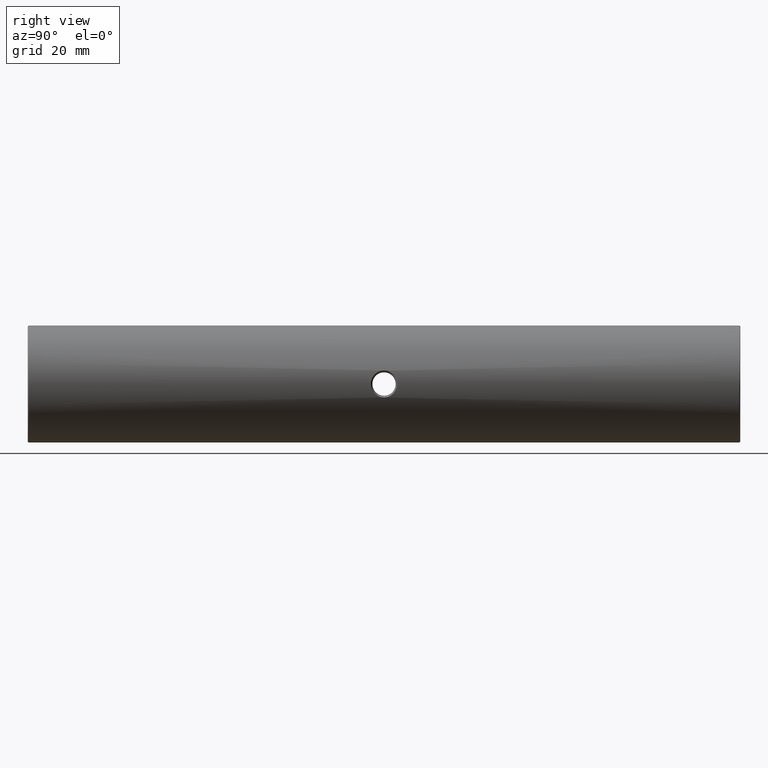
[diagram: clean part render]
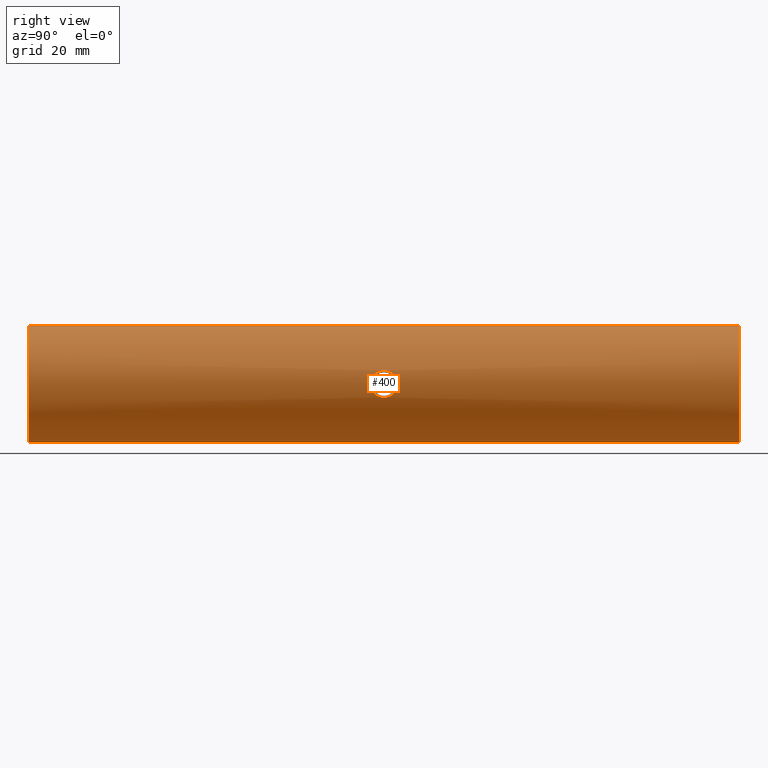
[diagram: same view with one face highlighted and labeled with its STEP entity id]
A machine part, right view. The second image highlights one B-rep face of the part: STEP entity #400.
In plain terms, the highlighted cylindrical surface (partial cylindrical patch) has radius 12.5 mm, axis along (-0, -1, -0).
Its self-contained STEP definition (entity closure, byte-faithful):
#42 = EDGE_CURVE ( 'NONE', #794, #189, #2627, .T. ) ;
#85 = CARTESIAN_POINT ( 'NONE',  ( -22.50520183104453409, -74.55174781523061256, 62.50000000000000000 ) ) ;
#103 = CARTESIAN_POINT ( 'NONE',  ( -10.34847189391650168, 1.398252184769386064, 47.09071877678779572 ) ) ;
#139 = CARTESIAN_POINT ( 'NONE',  ( -10.32931247817811382, 2.139314989562740355, 52.83196653070413618 ) ) ;
#189 = VERTEX_POINT ( 'NONE', #2931 ) ;
#211 = ORIENTED_EDGE ( 'NONE', *, *, #767, .T. ) ;
#225 = CARTESIAN_POINT ( 'NONE',  ( -10.02675186171662070, -1.322443306135983931, 50.75721055769170675 ) ) ;
#241 = CARTESIAN_POINT ( 'NONE',  ( -10.22044804822626496, -0.3177678142618768908, 47.68777784861504188 ) ) ;
#252 = DIRECTION ( 'NONE',  ( -0.0000000000000000000, -1.000000000000000000, -0.0000000000000000000 ) ) ;
#298 = EDGE_CURVE ( 'NONE', #1229, #3108, #2166, .T. ) ;
#334 = CARTESIAN_POINT ( 'NONE',  ( -10.34401387725285559, 1.031674240312187463, 52.89084654493360205 ) ) ;
#344 = CARTESIAN_POINT ( 'NONE',  ( -10.00964959997097914, 4.191281611593822731, 49.61735547849364281 ) ) ;
#400 = ADVANCED_FACE ( 'NONE', ( #3205, #2161 ), #846, .T. ) ;
#443 = AXIS2_PLACEMENT_3D ( 'NONE', #1053, #252, #1325 ) ;
#468 = CARTESIAN_POINT ( 'NONE',  ( -10.34845463298329626, 1.026200419320157931, 47.09079090336731355 ) ) ;
#499 = CARTESIAN_POINT ( 'NONE',  ( -10.22067027173311615, -0.3289239817676662958, 52.32705980222905850 ) ) ;
#607 = CARTESIAN_POINT ( 'NONE',  ( -10.03956905279386191, 4.064168843762233863, 49.05718252072970387 ) ) ;
#694 = DIRECTION ( 'NONE',  ( 0.0000000000000000000, 1.000000000000000000, 0.0000000000000000000 ) ) ;
#712 = VERTEX_POINT ( 'NONE', #1489 ) ;
#746 = CARTESIAN_POINT ( 'NONE',  ( -10.01064372293302185, -1.390416779116999013, 50.38099164021094367 ) ) ;
#762 = CARTESIAN_POINT ( 'NONE',  ( -10.08961095990384038, -1.040983855268388325, 48.54098388018954324 ) ) ;
#767 = EDGE_CURVE ( 'NONE', #3108, #1229, #1370, .T. ) ;
#777 = EDGE_LOOP ( 'NONE', ( #1779, #211 ) ) ;
#794 = VERTEX_POINT ( 'NONE', #85 ) ;
#827 = ORIENTED_EDGE ( 'NONE', *, *, #2805, .F. ) ;
#846 = CYLINDRICAL_SURFACE ( 'NONE', #1947, 12.49999999999999645 ) ;
#941 = CARTESIAN_POINT ( 'NONE',  ( -10.22016270266418836, 3.116156845041721191, 52.31070717733682329 ) ) ;
#1008 = CARTESIAN_POINT ( 'NONE',  ( -10.13104527352239259, -0.8357329463647609202, 48.22352196541852010 ) ) ;
#1024 = CARTESIAN_POINT ( 'NONE',  ( -10.03928546546168654, -1.268904155982409021, 49.06091485635030125 ) ) ;
#1028 = EDGE_CURVE ( 'NONE', #712, #794, #1561, .T. ) ;
#1042 = CARTESIAN_POINT ( 'NONE',  ( -10.00959453156566070, -1.395018423955151299, 49.61878162586662455 ) ) ;
#1051 = CARTESIAN_POINT ( 'NONE',  ( -22.50520183104453409, 77.59825218476937891, 62.50000000000000000 ) ) ;
#1053 = CARTESIAN_POINT ( 'NONE',  ( -22.50520183104453409, 77.34825218476937891, 50.00000000000000000 ) ) ;
#1056 = ORIENTED_EDGE ( 'NONE', *, *, #42, .T. ) ;
#1104 = CARTESIAN_POINT ( 'NONE',  ( -10.26240494945658810, 2.806784448265154275, 47.47501714754376678 ) ) ;
#1135 = CARTESIAN_POINT ( 'NONE',  ( -10.02657681141778134, 4.119691500564691466, 50.75422238455531243 ) ) ;
#1166 = AXIS2_PLACEMENT_3D ( 'NONE', #1540, #694, #2832 ) ;
#1210 = CARTESIAN_POINT ( 'NONE',  ( -10.28116133936228849, 2.647623010313875813, 52.61312323643212352 ) ) ;
#1229 = VERTEX_POINT ( 'NONE', #2101 ) ;
#1295 = VERTEX_POINT ( 'NONE', #2706 ) ;
#1299 = CARTESIAN_POINT ( 'NONE',  ( -10.15309026959585914, -0.7201977725135587649, 48.07808007598470823 ) ) ;
#1325 = DIRECTION ( 'NONE',  ( 0.0000000000000000000, 0.0000000000000000000, 1.000000000000000000 ) ) ;
#1370 = B_SPLINE_CURVE_WITH_KNOTS ( 'NONE', 3,
 ( #2535, #2275, #139, #1210, #3336, #941, #2008, #1748, #2816, #2989, #1954, #1628, #1135, #1919, #1885, #3234, #2435, #1935, #344, #3006, #607, #3022, #1405, #2957, #2153, #1104, #3282, #2497, #1660, #103 ),
 .UNSPECIFIED., .F., .F.,
 ( 4, 2, 2, 2, 2, 2, 2, 2, 2, 2, 2, 2, 2, 2, 4 ),
 ( 0.5000000000000000000, 0.5625000000000002220, 0.5937500000000002220, 0.6250000000000001110, 0.6562500000000000000, 0.6874999999999998890, 0.7187499999999997780, 0.7343749999999996669, 0.7499999999999996669, 0.7812499999999994449, 0.8124999999999993339, 0.8749999999999990008, 0.9062499999999992228, 0.9374999999999995559, 1.000000000000000000 ),
 .UNSPECIFIED. ) ;
#1405 = CARTESIAN_POINT ( 'NONE',  ( -10.13120772190444718, 3.643678481295848037, 48.20895563089933233 ) ) ;
#1452 = VECTOR ( 'NONE', #2664, 1000.000000000000000 ) ;
#1467 = ORIENTED_EDGE ( 'NONE', *, *, #1028, .T. ) ;
#1489 = CARTESIAN_POINT ( 'NONE',  ( -22.50520183104453409, 77.34825218476937891, 62.50000000000000000 ) ) ;
#1537 = CARTESIAN_POINT ( 'NONE',  ( -10.32954370538269551, 0.6599845765319402036, 47.16701032399795679 ) ) ;
#1540 = CARTESIAN_POINT ( 'NONE',  ( -22.50520183104453409, -74.55174781523061256, 50.00000000000000000 ) ) ;
#1554 = CARTESIAN_POINT ( 'NONE',  ( -10.00627837453443369, -1.408621410732946222, 50.18986673007000121 ) ) ;
#1561 = LINE ( 'NONE', #1051, #1452 ) ;
#1570 = CARTESIAN_POINT ( 'NONE',  ( -10.26514075146268823, -0.02094479338462088697, 52.54036784948638683 ) ) ;
#1592 = LINE ( 'NONE', #2628, #3123 ) ;
#1628 = CARTESIAN_POINT ( 'NONE',  ( -10.03912386684485902, 4.066135811496584651, 50.93725250157473994 ) ) ;
#1660 = CARTESIAN_POINT ( 'NONE',  ( -10.34848894705067046, 1.765824933951805065, 47.09064751851788344 ) ) ;
#1748 = CARTESIAN_POINT ( 'NONE',  ( -10.15294739807879765, 3.517539804955823968, 51.92107485672843126 ) ) ;
#1779 = ORIENTED_EDGE ( 'NONE', *, *, #298, .T. ) ;
#1798 = CARTESIAN_POINT ( 'NONE',  ( -10.34847189391650168, 1.398252184769386064, 47.09071877678779572 ) ) ;
#1856 = CARTESIAN_POINT ( 'NONE',  ( -10.34847154019207949, 1.401086072872692601, 52.90927974513803633 ) ) ;
#1885 = CARTESIAN_POINT ( 'NONE',  ( -10.01064152821728648, 4.186927187749979851, 50.38093568510178244 ) ) ;
#1892 = CIRCLE ( 'NONE', #443, 12.49999999999999645 ) ;
#1893 = DIRECTION ( 'NONE',  ( -0.0000000000000000000, -1.000000000000000000, -0.0000000000000000000 ) ) ;
#1919 = CARTESIAN_POINT ( 'NONE',  ( -10.01384831664376662, 4.173523746012523183, 50.47415274408400876 ) ) ;
#1935 = CARTESIAN_POINT ( 'NONE',  ( -10.00523732347763506, 4.209438793494732600, 49.80666152472052488 ) ) ;
#1947 = AXIS2_PLACEMENT_3D ( 'NONE', #2690, #1893, #3272 ) ;
#1954 = CARTESIAN_POINT ( 'NONE',  ( -10.07078360413767726, 3.924386101507585600, 51.29104044072189339 ) ) ;
#2008 = CARTESIAN_POINT ( 'NONE',  ( -10.19795443141096669, 3.257006472572751221, 52.19097686571279127 ) ) ;
#2076 = CARTESIAN_POINT ( 'NONE',  ( -10.02677036316765147, -1.322359924720013513, 49.24218911787531283 ) ) ;
#2094 = CARTESIAN_POINT ( 'NONE',  ( -10.08992494500197346, -1.039449521787542130, 51.46152594163834237 ) ) ;
#2101 = CARTESIAN_POINT ( 'NONE',  ( -10.34847189391650168, 1.398252184769386064, 47.09071877678779572 ) ) ;
#2108 = CARTESIAN_POINT ( 'NONE',  ( -10.26201457399352357, -0.01335821455697432276, 47.47692398635975053 ) ) ;
#2153 = CARTESIAN_POINT ( 'NONE',  ( -10.22069015972168238, 3.112715133747169460, 47.68647738585723062 ) ) ;
#2161 = FACE_OUTER_BOUND ( 'NONE', #2329, .T. ) ;
#2166 = B_SPLINE_CURVE_WITH_KNOTS ( 'NONE', 3,
 ( #1798, #468, #1537, #2603, #2108, #241, #3401, #1299, #1008, #762, #3172, #1024, #2076, #1042, #2374, #3138, #1554, #746, #2883, #225, #2359, #3419, #2094, #3156, #2900, #499, #1570, #2638, #3239, #334, #2979, #2209 ),
 .UNSPECIFIED., .F., .F.,
 ( 4, 2, 2, 2, 2, 2, 2, 2, 2, 2, 2, 2, 2, 2, 2, 4 ),
 ( 0.0000000000000000000, 0.06250000000000185962, 0.09375000000000278944, 0.1250000000000037192, 0.1562500000000046629, 0.1875000000000056066, 0.2187500000000065781, 0.2500000000000074940, 0.2656250000000073830, 0.2812500000000073275, 0.3125000000000059952, 0.3437500000000047184, 0.3750000000000034417, 0.4375000000000016653, 0.4687500000000008327, 0.5000000000000000000 ),
 .UNSPECIFIED. ) ;
#2209 = CARTESIAN_POINT ( 'NONE',  ( -10.34847154019207949, 1.401086072872692601, 52.90927974513803633 ) ) ;
#2275 = CARTESIAN_POINT ( 'NONE',  ( -10.34839696664155895, 1.768149378132138239, 52.90896813174229862 ) ) ;
#2329 = EDGE_LOOP ( 'NONE', ( #3071, #1467, #1056, #827 ) ) ;
#2334 = DIRECTION ( 'NONE',  ( -0.0000000000000000000, -1.000000000000000000, -0.0000000000000000000 ) ) ;
#2359 = CARTESIAN_POINT ( 'NONE',  ( -10.03926934905746648, -1.268979855236195942, 50.93906143870373882 ) ) ;
#2374 = CARTESIAN_POINT ( 'NONE',  ( -10.00519734990736964, -1.413097615887334291, 49.80982674692157985 ) ) ;
#2435 = CARTESIAN_POINT ( 'NONE',  ( -10.00518440457559954, 4.209659017141497372, 50.09320650238480255 ) ) ;
#2497 = CARTESIAN_POINT ( 'NONE',  ( -10.32961809028129885, 2.135293394376634346, 47.16670927387668399 ) ) ;
#2535 = CARTESIAN_POINT ( 'NONE',  ( -10.34847154019207949, 1.401086072872692601, 52.90927974513803633 ) ) ;
#2603 = CARTESIAN_POINT ( 'NONE',  ( -10.28120580035105824, 0.1491743863578689766, 47.38666087812496386 ) ) ;
#2627 = CIRCLE ( 'NONE', #1166, 12.49999999999999645 ) ;
#2628 = CARTESIAN_POINT ( 'NONE',  ( -22.50520183104453409, 77.59825218476937891, 37.50000000000000711 ) ) ;
#2638 = CARTESIAN_POINT ( 'NONE',  ( -10.31357678706533676, 0.4914312575701554886, 52.76042022121068698 ) ) ;
#2664 = DIRECTION ( 'NONE',  ( -0.0000000000000000000, -1.000000000000000000, -0.0000000000000000000 ) ) ;
#2690 = CARTESIAN_POINT ( 'NONE',  ( -22.50520183104453409, 77.59825218476937891, 50.00000000000000000 ) ) ;
#2706 = CARTESIAN_POINT ( 'NONE',  ( -22.50520183104453409, 77.34825218476937891, 37.50000000000000711 ) ) ;
#2805 = EDGE_CURVE ( 'NONE', #1295, #189, #1592, .T. ) ;
#2816 = CARTESIAN_POINT ( 'NONE',  ( -10.13051884922378854, 3.634910052844992467, 51.77268452503543728 ) ) ;
#2832 = DIRECTION ( 'NONE',  ( 0.0000000000000000000, 0.0000000000000000000, 1.000000000000000000 ) ) ;
#2883 = CARTESIAN_POINT ( 'NONE',  ( -10.01393814977552488, -1.376641194406641455, 50.47655221270571246 ) ) ;
#2900 = CARTESIAN_POINT ( 'NONE',  ( -10.15310274898453180, -0.7201770143199969221, 51.92207674292406949 ) ) ;
#2931 = CARTESIAN_POINT ( 'NONE',  ( -22.50520183104453409, -74.55174781523061256, 37.50000000000000711 ) ) ;
#2957 = CARTESIAN_POINT ( 'NONE',  ( -10.19821154778019334, 3.255369150901104902, 47.80765360768029382 ) ) ;
#2979 = CARTESIAN_POINT ( 'NONE',  ( -10.34850882696734331, 1.217554420242966007, 52.90943555183590519 ) ) ;
#2988 = EDGE_CURVE ( 'NONE', #1295, #712, #1892, .T. ) ;
#2989 = CARTESIAN_POINT ( 'NONE',  ( -10.08950009456848029, 3.837971256596494740, 51.45792308326934261 ) ) ;
#3006 = CARTESIAN_POINT ( 'NONE',  ( -10.02677590329419210, 4.118849129201295867, 49.24228715533253364 ) ) ;
#3022 = CARTESIAN_POINT ( 'NONE',  ( -10.08673579309597557, 3.852910402659698530, 48.53189826306930854 ) ) ;
#3071 = ORIENTED_EDGE ( 'NONE', *, *, #2988, .T. ) ;
#3108 = VERTEX_POINT ( 'NONE', #1856 ) ;
#3123 = VECTOR ( 'NONE', #2334, 1000.000000000000000 ) ;
#3138 = CARTESIAN_POINT ( 'NONE',  ( -10.00520407681040602, -1.413074357631401767, 50.09552809953435570 ) ) ;
#3156 = CARTESIAN_POINT ( 'NONE',  ( -10.13100719875639655, -0.8359003745979780575, 51.77608148389533937 ) ) ;
#3172 = CARTESIAN_POINT ( 'NONE',  ( -10.07065230753339158, -1.128473363181059286, 48.71045361150564901 ) ) ;
#3205 = FACE_BOUND ( 'NONE', #777, .T. ) ;
#3234 = CARTESIAN_POINT ( 'NONE',  ( -10.00627509750832367, 4.205142563660567490, 50.18968306952479708 ) ) ;
#3239 = CARTESIAN_POINT ( 'NONE',  ( -10.32641410112918123, 0.6672506221653368153, 52.81577975407622461 ) ) ;
#3272 = DIRECTION ( 'NONE',  ( 0.0000000000000000000, 0.0000000000000000000, -1.000000000000000000 ) ) ;
#3282 = CARTESIAN_POINT ( 'NONE',  ( -10.28138215996620808, 2.645685024799180773, 47.38584113131449271 ) ) ;
#3336 = CARTESIAN_POINT ( 'NONE',  ( -10.26171685815564061, 2.812244921916692064, 52.52163236096697574 ) ) ;
#3401 = CARTESIAN_POINT ( 'NONE',  ( -10.19775323581731641, -0.4616773628605408963, 47.81021797965176745 ) ) ;
#3419 = CARTESIAN_POINT ( 'NONE',  ( -10.07084455742824325, -1.127609090102727807, 51.29153715517062295 ) ) ;